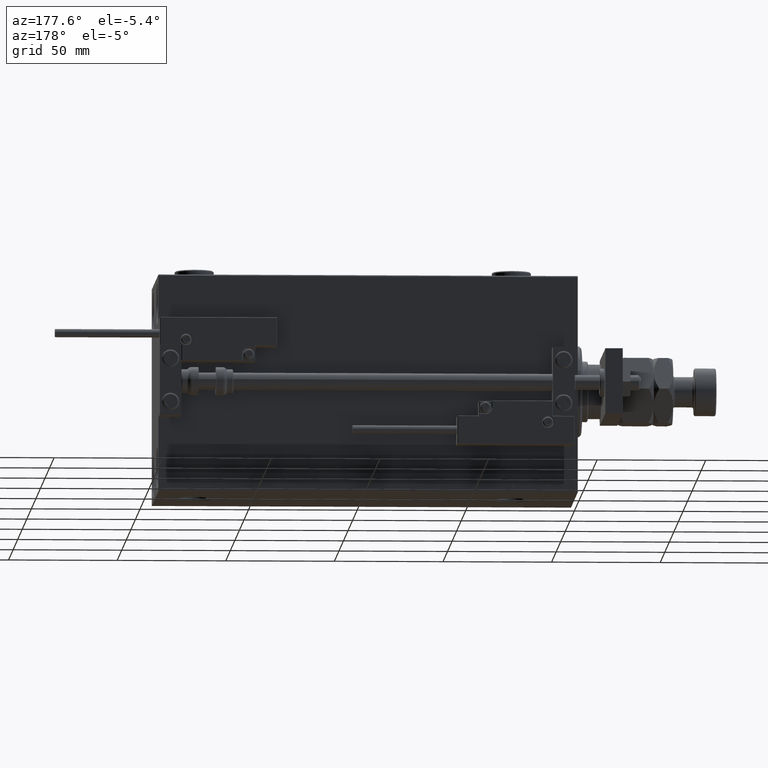
[diagram: clean part render]
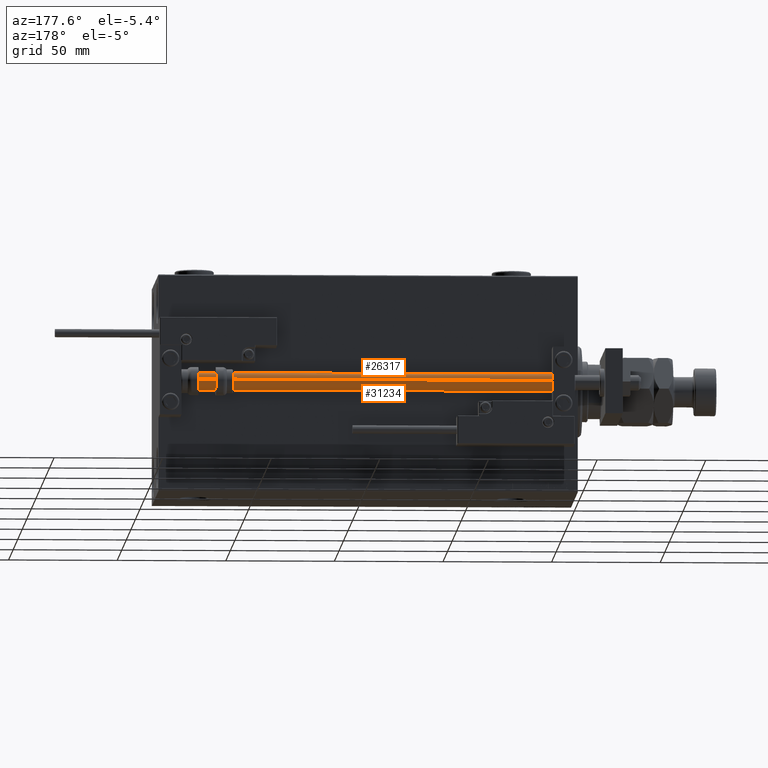
[diagram: same view with one multi-face feature highlighted, each face labeled with its STEP entity id]
A machine part, auxiliary view. The highlighted faces form ONE feature: a constant-radius fillet chain: 2 tangent blend faces with common blend radius 4 mm. The faces share edges in the B-rep.
Their STEP definitions:
[1] entity #31234 (Cylinder):
#1371 = CARTESIAN_POINT ( 'NONE',  ( 4.000000000000000000, 4.898587196589412829E-16, 193.0000000000000000 ) ) ;
#4138 = ORIENTED_EDGE ( 'NONE', *, *, #24788, .T. ) ;
#5429 = CARTESIAN_POINT ( 'NONE',  ( 4.000000000000000000, 4.898587196589412829E-16, 2.000000000000029310 ) ) ;
#9033 = DIRECTION ( 'NONE',  ( -0.000000000000000000, -0.000000000000000000, -1.000000000000000000 ) ) ;
#9587 = EDGE_CURVE ( 'NONE', #45436, #14300, #33221, .T. ) ;
#13076 = FACE_OUTER_BOUND ( 'NONE', #18061, .T. ) ;
#13230 = DIRECTION ( 'NONE',  ( 0.000000000000000000, 0.000000000000000000, 1.000000000000000000 ) ) ;
#13757 = CARTESIAN_POINT ( 'NONE',  ( 0.000000000000000000, 0.000000000000000000, 193.0000000000000000 ) ) ;
#14300 = VERTEX_POINT ( 'NONE', #5429 ) ;
#18061 = EDGE_LOOP ( 'NONE', ( #31990, #40507, #43025, #4138 ) ) ;
#19453 = DIRECTION ( 'NONE',  ( 1.000000000000000000, 0.000000000000000000, 0.000000000000000000 ) ) ;
#19720 = VERTEX_POINT ( 'NONE', #48049 ) ;
#19929 = CIRCLE ( 'NONE', #42314, 4.000000000000000000 ) ;
#20115 = DIRECTION ( 'NONE',  ( -1.000000000000000000, 0.000000000000000000, 0.000000000000000000 ) ) ;
#21867 = AXIS2_PLACEMENT_3D ( 'NONE', #46005, #9033, #20115 ) ;
#23392 = CARTESIAN_POINT ( 'NONE',  ( -4.000000000000000000, 0.000000000000000000, 193.0000000000000000 ) ) ;
#24788 = EDGE_CURVE ( 'NONE', #25872, #14300, #19929, .T. ) ;
#25872 = VERTEX_POINT ( 'NONE', #47654 ) ;
#27006 = DIRECTION ( 'NONE',  ( -0.000000000000000000, -0.000000000000000000, 1.000000000000000000 ) ) ;
#29526 = CYLINDRICAL_SURFACE ( 'NONE', #21867, 4.000000000000000000 ) ;
#30954 = LINE ( 'NONE', #23392, #51371 ) ;
#31234 = ADVANCED_FACE ( 'NONE', ( #13076 ), #29526, .T. ) ;
#31990 = ORIENTED_EDGE ( 'NONE', *, *, #9587, .F. ) ;
#33209 = CIRCLE ( 'NONE', #43592, 4.000000000000000000 ) ;
#33221 = LINE ( 'NONE', #37808, #52232 ) ;
#37808 = CARTESIAN_POINT ( 'NONE',  ( 4.000000000000000000, 4.898587196589412829E-16, 193.0000000000000000 ) ) ;
#39974 = CARTESIAN_POINT ( 'NONE',  ( 0.000000000000000000, 0.000000000000000000, 2.000000000000029310 ) ) ;
#40507 = ORIENTED_EDGE ( 'NONE', *, *, #52072, .F. ) ;
#42314 = AXIS2_PLACEMENT_3D ( 'NONE', #39974, #27006, #19453 ) ;
#43025 = ORIENTED_EDGE ( 'NONE', *, *, #53333, .T. ) ;
#43115 = DIRECTION ( 'NONE',  ( -0.000000000000000000, -0.000000000000000000, -1.000000000000000000 ) ) ;
#43592 = AXIS2_PLACEMENT_3D ( 'NONE', #13757, #13230, #46946 ) ;
#45436 = VERTEX_POINT ( 'NONE', #1371 ) ;
#46005 = CARTESIAN_POINT ( 'NONE',  ( 0.000000000000000000, 0.000000000000000000, 193.0000000000000000 ) ) ;
#46177 = DIRECTION ( 'NONE',  ( -0.000000000000000000, -0.000000000000000000, -1.000000000000000000 ) ) ;
#46946 = DIRECTION ( 'NONE',  ( 1.000000000000000000, 0.000000000000000000, 0.000000000000000000 ) ) ;
#47654 = CARTESIAN_POINT ( 'NONE',  ( -4.000000000000000000, 0.000000000000000000, 2.000000000000029310 ) ) ;
#48049 = CARTESIAN_POINT ( 'NONE',  ( -4.000000000000000000, 0.000000000000000000, 193.0000000000000000 ) ) ;
#51371 = VECTOR ( 'NONE', #43115, 1000.000000000000000 ) ;
#52072 = EDGE_CURVE ( 'NONE', #19720, #45436, #33209, .T. ) ;
#52232 = VECTOR ( 'NONE', #46177, 1000.000000000000000 ) ;
#53333 = EDGE_CURVE ( 'NONE', #19720, #25872, #30954, .T. ) ;
[2] entity #26317 (Cylinder):
#1371 = CARTESIAN_POINT ( 'NONE',  ( 4.000000000000000000, 4.898587196589412829E-16, 193.0000000000000000 ) ) ;
#2169 = DIRECTION ( 'NONE',  ( 1.000000000000000000, 0.000000000000000000, 0.000000000000000000 ) ) ;
#3247 = CARTESIAN_POINT ( 'NONE',  ( 0.000000000000000000, 0.000000000000000000, 193.0000000000000000 ) ) ;
#3880 = FACE_OUTER_BOUND ( 'NONE', #12699, .T. ) ;
#5429 = CARTESIAN_POINT ( 'NONE',  ( 4.000000000000000000, 4.898587196589412829E-16, 2.000000000000029310 ) ) ;
#6075 = CARTESIAN_POINT ( 'NONE',  ( 0.000000000000000000, 0.000000000000000000, 2.000000000000029310 ) ) ;
#7006 = DIRECTION ( 'NONE',  ( 0.000000000000000000, 0.000000000000000000, 1.000000000000000000 ) ) ;
#9587 = EDGE_CURVE ( 'NONE', #45436, #14300, #33221, .T. ) ;
#11952 = CARTESIAN_POINT ( 'NONE',  ( 0.000000000000000000, 0.000000000000000000, 193.0000000000000000 ) ) ;
#12699 = EDGE_LOOP ( 'NONE', ( #40393, #14555, #34310, #42966 ) ) ;
#14300 = VERTEX_POINT ( 'NONE', #5429 ) ;
#14555 = ORIENTED_EDGE ( 'NONE', *, *, #9587, .T. ) ;
#14702 = DIRECTION ( 'NONE',  ( 1.000000000000000000, 0.000000000000000000, 0.000000000000000000 ) ) ;
#19720 = VERTEX_POINT ( 'NONE', #48049 ) ;
#23392 = CARTESIAN_POINT ( 'NONE',  ( -4.000000000000000000, 0.000000000000000000, 193.0000000000000000 ) ) ;
#24866 = CYLINDRICAL_SURFACE ( 'NONE', #39768, 4.000000000000000000 ) ;
#25872 = VERTEX_POINT ( 'NONE', #47654 ) ;
#26317 = ADVANCED_FACE ( 'NONE', ( #3880 ), #24866, .T. ) ;
#28206 = EDGE_CURVE ( 'NONE', #14300, #25872, #47635, .T. ) ;
#28671 = DIRECTION ( 'NONE',  ( -0.000000000000000000, -0.000000000000000000, -1.000000000000000000 ) ) ;
#30954 = LINE ( 'NONE', #23392, #51371 ) ;
#32454 = DIRECTION ( 'NONE',  ( -1.000000000000000000, 0.000000000000000000, 0.000000000000000000 ) ) ;
#33221 = LINE ( 'NONE', #37808, #52232 ) ;
#34310 = ORIENTED_EDGE ( 'NONE', *, *, #28206, .T. ) ;
#35202 = DIRECTION ( 'NONE',  ( -0.000000000000000000, -0.000000000000000000, 1.000000000000000000 ) ) ;
#37808 = CARTESIAN_POINT ( 'NONE',  ( 4.000000000000000000, 4.898587196589412829E-16, 193.0000000000000000 ) ) ;
#39768 = AXIS2_PLACEMENT_3D ( 'NONE', #11952, #28671, #32454 ) ;
#40393 = ORIENTED_EDGE ( 'NONE', *, *, #45487, .F. ) ;
#42966 = ORIENTED_EDGE ( 'NONE', *, *, #53333, .F. ) ;
#43115 = DIRECTION ( 'NONE',  ( -0.000000000000000000, -0.000000000000000000, -1.000000000000000000 ) ) ;
#45225 = CIRCLE ( 'NONE', #46059, 4.000000000000000000 ) ;
#45436 = VERTEX_POINT ( 'NONE', #1371 ) ;
#45487 = EDGE_CURVE ( 'NONE', #45436, #19720, #45225, .T. ) ;
#46059 = AXIS2_PLACEMENT_3D ( 'NONE', #3247, #7006, #2169 ) ;
#46177 = DIRECTION ( 'NONE',  ( -0.000000000000000000, -0.000000000000000000, -1.000000000000000000 ) ) ;
#47635 = CIRCLE ( 'NONE', #48489, 4.000000000000000000 ) ;
#47654 = CARTESIAN_POINT ( 'NONE',  ( -4.000000000000000000, 0.000000000000000000, 2.000000000000029310 ) ) ;
#48049 = CARTESIAN_POINT ( 'NONE',  ( -4.000000000000000000, 0.000000000000000000, 193.0000000000000000 ) ) ;
#48489 = AXIS2_PLACEMENT_3D ( 'NONE', #6075, #35202, #14702 ) ;
#51371 = VECTOR ( 'NONE', #43115, 1000.000000000000000 ) ;
#52232 = VECTOR ( 'NONE', #46177, 1000.000000000000000 ) ;
#53333 = EDGE_CURVE ( 'NONE', #19720, #25872, #30954, .T. ) ;